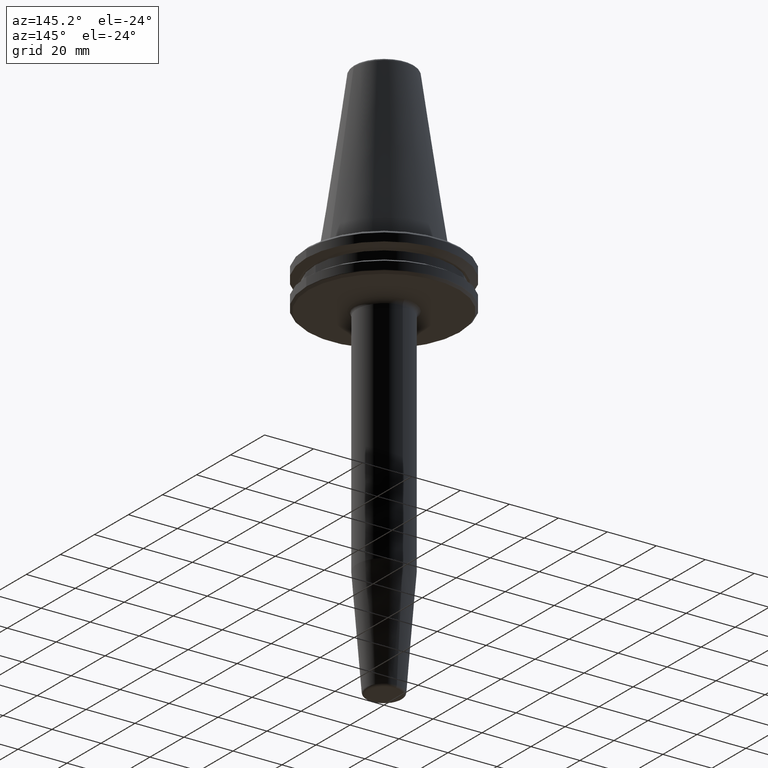
[diagram: clean part render]
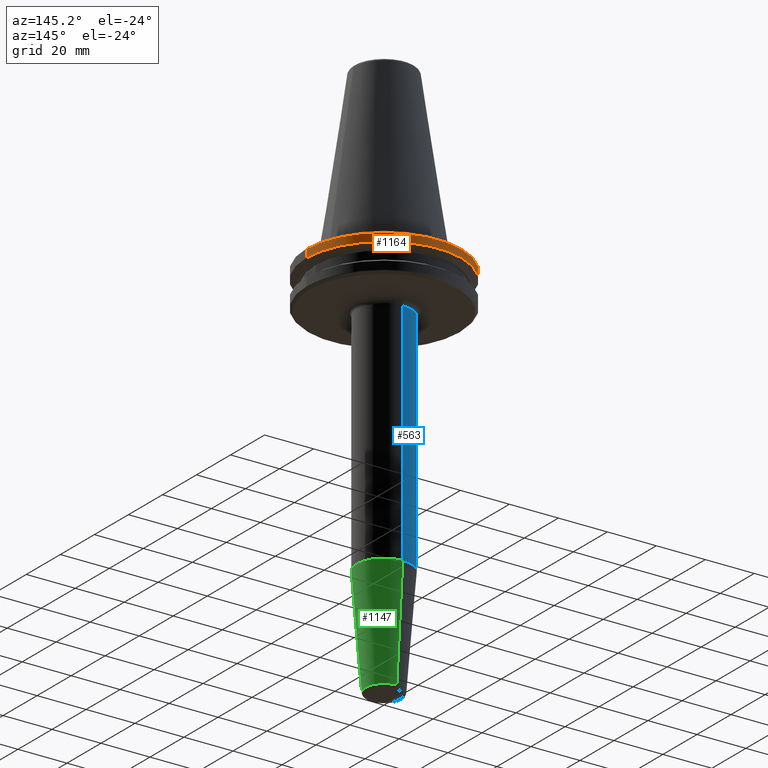
[diagram: same view with three faces highlighted in distinct colors, each labeled with its STEP entity id]
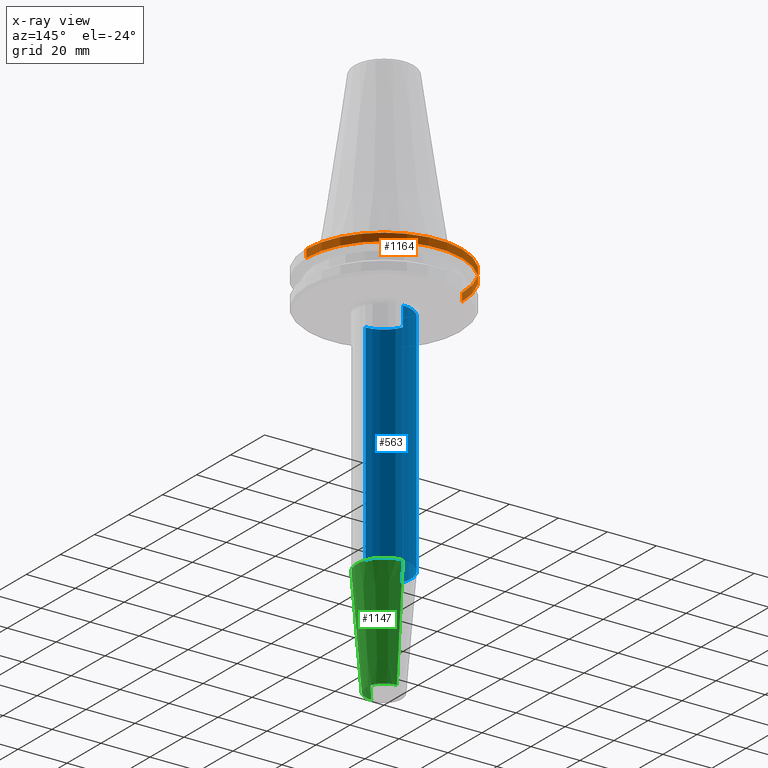
[diagram: x-ray of the same camera — body ghosted, the three highlighted faces saturated]
A machine part, auxiliary view with three faces highlighted in distinct colors.
The next image is the same camera in x-ray (body ghosted, the three faces saturated) — at least one of them is partly hidden behind the body in this view.
Their STEP definitions:

[orange] entity #1164 — the highlighted cylindrical surface (partial cylindrical patch) has radius 31.75 mm, axis along (-0, -0, 1).
#23 = CARTESIAN_POINT ( 'NONE',  ( 31.75000000000000000, 0.0000000000000000000, -4.365685424949250000 ) ) ;
#32 = AXIS2_PLACEMENT_3D ( 'NONE', #975, #1071, #1168 ) ;
#54 = CARTESIAN_POINT ( 'NONE',  ( -31.75000000000000000, 3.888253587292846500E-015, -4.365685424949250000 ) ) ;
#59 = CARTESIAN_POINT ( 'NONE',  ( -31.75000000000000000, 3.888253587292846500E-015, -7.578163357943284800 ) ) ;
#80 = VECTOR ( 'NONE', #203, 1000.000000000000000 ) ;
#203 = DIRECTION ( 'NONE',  ( -0.0000000000000000000, -0.0000000000000000000, 1.000000000000000000 ) ) ;
#247 = DIRECTION ( 'NONE',  ( -0.0000000000000000000, -0.0000000000000000000, 1.000000000000000000 ) ) ;
#338 = ORIENTED_EDGE ( 'NONE', *, *, #1259, .F. ) ;
#364 = CIRCLE ( 'NONE', #32, 31.75000000000000000 ) ;
#390 = ORIENTED_EDGE ( 'NONE', *, *, #742, .T. ) ;
#476 = VERTEX_POINT ( 'NONE', #585 ) ;
#480 = DIRECTION ( 'NONE',  ( 1.000000000000000000, 0.0000000000000000000, 0.0000000000000000000 ) ) ;
#498 = LINE ( 'NONE', #1205, #746 ) ;
#507 = EDGE_CURVE ( 'NONE', #895, #1206, #364, .T. ) ;
#529 = CARTESIAN_POINT ( 'NONE',  ( 0.0000000000000000000, 0.0000000000000000000, 113.5216080541959500 ) ) ;
#535 = EDGE_CURVE ( 'NONE', #1082, #1206, #623, .T. ) ;
#585 = CARTESIAN_POINT ( 'NONE',  ( 31.75000000000000000, 0.0000000000000000000, -7.578163357943284800 ) ) ;
#623 = LINE ( 'NONE', #762, #80 ) ;
#645 = CIRCLE ( 'NONE', #1133, 31.75000000000000000 ) ;
#723 = DIRECTION ( 'NONE',  ( 1.000000000000000000, 0.0000000000000000000, 0.0000000000000000000 ) ) ;
#742 = EDGE_CURVE ( 'NONE', #476, #1082, #645, .T. ) ;
#746 = VECTOR ( 'NONE', #1099, 1000.000000000000000 ) ;
#762 = CARTESIAN_POINT ( 'NONE',  ( -31.75000000000000000, 3.888253587292846500E-015, 113.5216080541959500 ) ) ;
#775 = DIRECTION ( 'NONE',  ( -0.0000000000000000000, -0.0000000000000000000, 1.000000000000000000 ) ) ;
#836 = AXIS2_PLACEMENT_3D ( 'NONE', #529, #247, #723 ) ;
#841 = ORIENTED_EDGE ( 'NONE', *, *, #535, .T. ) ;
#861 = CARTESIAN_POINT ( 'NONE',  ( 0.0000000000000000000, 0.0000000000000000000, -7.578163357943284800 ) ) ;
#868 = FACE_OUTER_BOUND ( 'NONE', #1046, .T. ) ;
#895 = VERTEX_POINT ( 'NONE', #23 ) ;
#975 = CARTESIAN_POINT ( 'NONE',  ( 0.0000000000000000000, 0.0000000000000000000, -4.365685424949250000 ) ) ;
#1046 = EDGE_LOOP ( 'NONE', ( #390, #841, #1104, #338 ) ) ;
#1071 = DIRECTION ( 'NONE',  ( -0.0000000000000000000, -0.0000000000000000000, 1.000000000000000000 ) ) ;
#1082 = VERTEX_POINT ( 'NONE', #59 ) ;
#1096 = CYLINDRICAL_SURFACE ( 'NONE', #836, 31.75000000000000000 ) ;
#1099 = DIRECTION ( 'NONE',  ( -0.0000000000000000000, -0.0000000000000000000, 1.000000000000000000 ) ) ;
#1104 = ORIENTED_EDGE ( 'NONE', *, *, #507, .F. ) ;
#1133 = AXIS2_PLACEMENT_3D ( 'NONE', #861, #775, #480 ) ;
#1164 = ADVANCED_FACE ( 'NONE', ( #868 ), #1096, .T. ) ;
#1168 = DIRECTION ( 'NONE',  ( 1.000000000000000000, 0.0000000000000000000, 0.0000000000000000000 ) ) ;
#1205 = CARTESIAN_POINT ( 'NONE',  ( 31.75000000000000000, 0.0000000000000000000, 113.5216080541959500 ) ) ;
#1206 = VERTEX_POINT ( 'NONE', #54 ) ;
#1259 = EDGE_CURVE ( 'NONE', #476, #895, #498, .T. ) ;

[blue] entity #563 — the highlighted cylindrical surface (edge-blend (fillet) strip) has radius 11 mm, axis along (-0, 0, -1).
#11 = DIRECTION ( 'NONE',  ( 0.0000000000000000000, 1.000000000000000000, 0.0000000000000000000 ) ) ;
#22 = AXIS2_PLACEMENT_3D ( 'NONE', #881, #1167, #11 ) ;
#49 = DIRECTION ( 'NONE',  ( -0.0000000000000000000, 1.256330602389183300E-016, -1.000000000000000000 ) ) ;
#86 = CARTESIAN_POINT ( 'NONE',  ( 0.0000000000000000000, 11.00000000000001100, -160.0000000000000000 ) ) ;
#99 = CIRCLE ( 'NONE', #438, 11.00000000000000500 ) ;
#115 = VECTOR ( 'NONE', #676, 1000.000000000000000 ) ;
#123 = VERTEX_POINT ( 'NONE', #855 ) ;
#156 = VERTEX_POINT ( 'NONE', #284 ) ;
#178 = LINE ( 'NONE', #706, #659 ) ;
#202 = CARTESIAN_POINT ( 'NONE',  ( 1.347111479062089000E-015, 11.00000000000000000, -114.6067425191116100 ) ) ;
#263 = CIRCLE ( 'NONE', #22, 11.00000000000001400 ) ;
#284 = CARTESIAN_POINT ( 'NONE',  ( 0.0000000000000000000, -11.00000000000001100, -114.6067425191116100 ) ) ;
#287 = CARTESIAN_POINT ( 'NONE',  ( 0.0000000000000000000, 4.467959865220142400E-016, -160.0000000000000000 ) ) ;
#298 = DIRECTION ( 'NONE',  ( 0.0000000000000000000, 1.000000000000000000, 0.0000000000000000000 ) ) ;
#316 = AXIS2_PLACEMENT_3D ( 'NONE', #287, #858, #298 ) ;
#325 = CARTESIAN_POINT ( 'NONE',  ( 1.347111479062091400E-015, -11.00000000000003200, -20.98284271247460700 ) ) ;
#337 = LINE ( 'NONE', #86, #115 ) ;
#438 = AXIS2_PLACEMENT_3D ( 'NONE', #626, #49, #728 ) ;
#541 = CYLINDRICAL_SURFACE ( 'NONE', #316, 11.00000000000001100 ) ;
#543 = EDGE_CURVE ( 'NONE', #123, #609, #337, .T. ) ;
#563 = ADVANCED_FACE ( 'NONE', ( #1110 ), #541, .T. ) ;
#609 = VERTEX_POINT ( 'NONE', #202 ) ;
#615 = EDGE_CURVE ( 'NONE', #981, #123, #263, .T. ) ;
#626 = CARTESIAN_POINT ( 'NONE',  ( 0.0000000000000000000, -5.256097865015167400E-015, -114.6067425191116100 ) ) ;
#659 = VECTOR ( 'NONE', #1231, 1000.000000000000000 ) ;
#676 = DIRECTION ( 'NONE',  ( -0.0000000000000000000, 1.256330602389183300E-016, -1.000000000000000000 ) ) ;
#706 = CARTESIAN_POINT ( 'NONE',  ( 1.347111479062089800E-015, -11.00000000000001100, -160.0000000000000000 ) ) ;
#728 = DIRECTION ( 'NONE',  ( 0.0000000000000000000, 1.000000000000000000, 0.0000000000000000000 ) ) ;
#779 = ORIENTED_EDGE ( 'NONE', *, *, #615, .T. ) ;
#855 = CARTESIAN_POINT ( 'NONE',  ( 0.0000000000000000000, 10.99999999999999800, -20.98284271247460700 ) ) ;
#858 = DIRECTION ( 'NONE',  ( -0.0000000000000000000, 1.256330602389183300E-016, -1.000000000000000000 ) ) ;
#860 = ORIENTED_EDGE ( 'NONE', *, *, #1005, .F. ) ;
#881 = CARTESIAN_POINT ( 'NONE',  ( 0.0000000000000000000, -1.701835490922485000E-014, -20.98284271247460700 ) ) ;
#981 = VERTEX_POINT ( 'NONE', #325 ) ;
#1005 = EDGE_CURVE ( 'NONE', #981, #156, #178, .T. ) ;
#1066 = EDGE_LOOP ( 'NONE', ( #860, #779, #1249, #1190 ) ) ;
#1110 = FACE_OUTER_BOUND ( 'NONE', #1066, .T. ) ;
#1167 = DIRECTION ( 'NONE',  ( -0.0000000000000000000, 1.256330602389183300E-016, -1.000000000000000000 ) ) ;
#1179 = EDGE_CURVE ( 'NONE', #156, #609, #99, .T. ) ;
#1190 = ORIENTED_EDGE ( 'NONE', *, *, #1179, .F. ) ;
#1231 = DIRECTION ( 'NONE',  ( -0.0000000000000000000, 1.256330602389183300E-016, -1.000000000000000000 ) ) ;
#1249 = ORIENTED_EDGE ( 'NONE', *, *, #543, .T. ) ;

[green] entity #1147 — the highlighted conical surface has half-angle 4.5 deg.
#2 = LINE ( 'NONE', #344, #481 ) ;
#74 = ORIENTED_EDGE ( 'NONE', *, *, #1077, .F. ) ;
#94 = VERTEX_POINT ( 'NONE', #765 ) ;
#156 = VERTEX_POINT ( 'NONE', #284 ) ;
#202 = CARTESIAN_POINT ( 'NONE',  ( 1.347111479062089000E-015, 11.00000000000000000, -114.6067425191116100 ) ) ;
#264 = DIRECTION ( 'NONE',  ( -0.0000000000000000000, 1.256330602389183300E-016, -1.000000000000000000 ) ) ;
#284 = CARTESIAN_POINT ( 'NONE',  ( 0.0000000000000000000, -11.00000000000001100, -114.6067425191116100 ) ) ;
#311 = DIRECTION ( 'NONE',  ( -0.0000000000000000000, 1.256330602389183300E-016, -1.000000000000000000 ) ) ;
#313 = CARTESIAN_POINT ( 'NONE',  ( 0.0000000000000000000, -5.256097865015167400E-015, -114.6067425191116100 ) ) ;
#329 = DIRECTION ( 'NONE',  ( 0.0000000000000000000, -1.000000000000000000, 0.0000000000000000000 ) ) ;
#344 = CARTESIAN_POINT ( 'NONE',  ( 0.0000000000000000000, -7.500000000000000000, -159.0784590957278500 ) ) ;
#351 = CONICAL_SURFACE ( 'NONE', #972, 7.500000000000000000, 0.07853981633973655700 ) ;
#409 = FACE_OUTER_BOUND ( 'NONE', #826, .T. ) ;
#417 = ORIENTED_EDGE ( 'NONE', *, *, #1217, .F. ) ;
#419 = CARTESIAN_POINT ( 'NONE',  ( 0.0000000000000000000, 3.310199825829634200E-016, -159.0784590957278500 ) ) ;
#420 = EDGE_CURVE ( 'NONE', #94, #609, #458, .T. ) ;
#458 = LINE ( 'NONE', #1182, #1210 ) ;
#481 = VECTOR ( 'NONE', #640, 1000.000000000000000 ) ;
#516 = CARTESIAN_POINT ( 'NONE',  ( 9.184850993605147900E-016, -7.499999999999999100, -159.0784590957278500 ) ) ;
#525 = DIRECTION ( 'NONE',  ( 0.0000000000000000000, -1.256330602389183300E-016, 1.000000000000000000 ) ) ;
#609 = VERTEX_POINT ( 'NONE', #202 ) ;
#640 = DIRECTION ( 'NONE',  ( 0.0000000000000000000, -0.07845909572783682500, 0.9969173337331286300 ) ) ;
#671 = EDGE_CURVE ( 'NONE', #609, #156, #675, .T. ) ;
#675 = CIRCLE ( 'NONE', #1025, 11.00000000000000500 ) ;
#765 = CARTESIAN_POINT ( 'NONE',  ( 0.0000000000000000000, 7.500000000000000000, -159.0784590957278500 ) ) ;
#770 = AXIS2_PLACEMENT_3D ( 'NONE', #830, #264, #936 ) ;
#805 = ORIENTED_EDGE ( 'NONE', *, *, #671, .T. ) ;
#826 = EDGE_LOOP ( 'NONE', ( #417, #987, #805, #74 ) ) ;
#830 = CARTESIAN_POINT ( 'NONE',  ( 0.0000000000000000000, 3.310199825829634200E-016, -159.0784590957278500 ) ) ;
#834 = CIRCLE ( 'NONE', #770, 7.499999999999999100 ) ;
#850 = VERTEX_POINT ( 'NONE', #516 ) ;
#866 = DIRECTION ( 'NONE',  ( 9.608468044709099700E-018, 0.07845909572783657500, 0.9969173337331286300 ) ) ;
#889 = DIRECTION ( 'NONE',  ( 0.0000000000000000000, 1.000000000000000000, 0.0000000000000000000 ) ) ;
#936 = DIRECTION ( 'NONE',  ( 0.0000000000000000000, 1.000000000000000000, 0.0000000000000000000 ) ) ;
#972 = AXIS2_PLACEMENT_3D ( 'NONE', #419, #525, #329 ) ;
#987 = ORIENTED_EDGE ( 'NONE', *, *, #420, .T. ) ;
#1025 = AXIS2_PLACEMENT_3D ( 'NONE', #313, #311, #889 ) ;
#1077 = EDGE_CURVE ( 'NONE', #850, #156, #2, .T. ) ;
#1147 = ADVANCED_FACE ( 'NONE', ( #409 ), #351, .T. ) ;
#1182 = CARTESIAN_POINT ( 'NONE',  ( 9.184850993605147900E-016, 7.500000000000000000, -159.0784590957278500 ) ) ;
#1210 = VECTOR ( 'NONE', #866, 1000.000000000000000 ) ;
#1217 = EDGE_CURVE ( 'NONE', #94, #850, #834, .T. ) ;